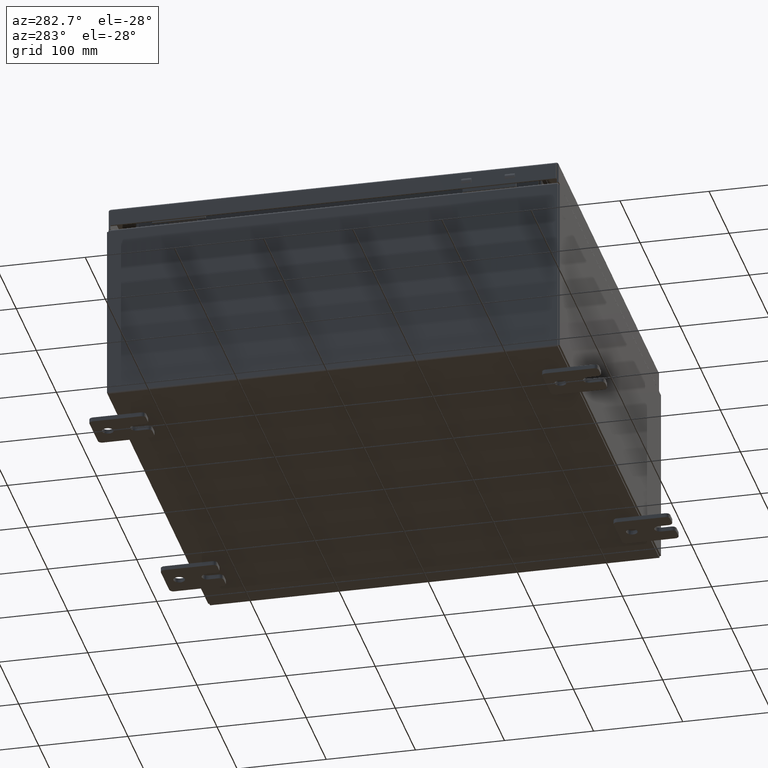
[diagram: clean part render]
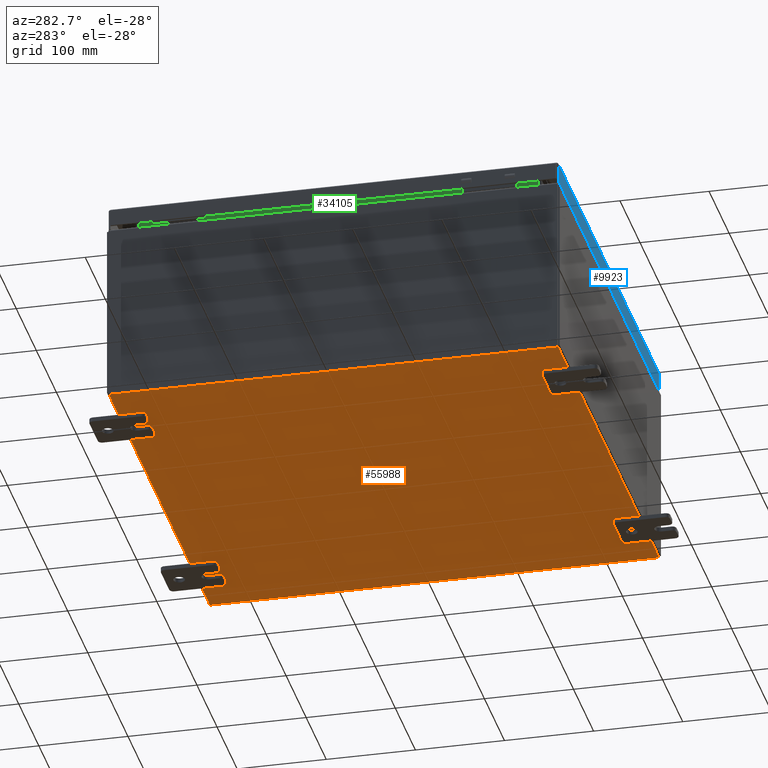
[diagram: same view with three faces highlighted in distinct colors, each labeled with its STEP entity id]
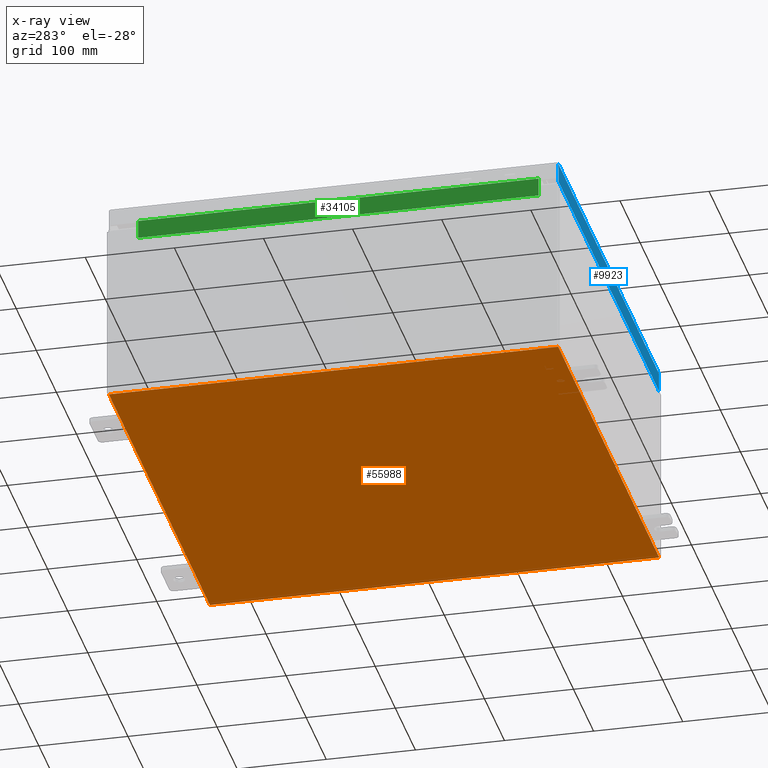
[diagram: x-ray of the same camera — body ghosted, the three highlighted faces saturated]
A machine part, auxiliary view with three faces highlighted in distinct colors.
The next image is the same camera in x-ray (body ghosted, the three faces saturated) — at least one of them is partly hidden behind the body in this view.
Their STEP definitions:

[orange] entity #55988 — the highlighted planar face has unit normal (0, 0, -1).
#1078 = EDGE_CURVE ( 'NONE', #15910, #55173, #44362, .T. ) ;
#5700 = VERTEX_POINT ( 'NONE', #6968 ) ;
#6968 = CARTESIAN_POINT ( 'NONE',  ( -9.912300000000000100, -9.925299999999998200, -0.07469999999999994700 ) ) ;
#7408 = CARTESIAN_POINT ( 'NONE',  ( 0.0000000000000000000, 0.0000000000000000000, -0.07470000000000000300 ) ) ;
#7688 = LINE ( 'NONE', #17289, #32192 ) ;
#8530 = CARTESIAN_POINT ( 'NONE',  ( 9.912300000000000100, 9.925300000000001800, -0.07469999999999994700 ) ) ;
#9858 = CARTESIAN_POINT ( 'NONE',  ( -9.912300000000000100, 9.925300000000001800, -0.07470000000000000300 ) ) ;
#11906 = LINE ( 'NONE', #34895, #36453 ) ;
#12307 = DIRECTION ( 'NONE',  ( -1.000000000000000000, 0.0000000000000000000, -0.0000000000000000000 ) ) ;
#15910 = VERTEX_POINT ( 'NONE', #48306 ) ;
#17289 = CARTESIAN_POINT ( 'NONE',  ( -10.00000000000000000, 9.925300000000001800, -0.07470000000000000300 ) ) ;
#17409 = EDGE_CURVE ( 'NONE', #15910, #56973, #7688, .T. ) ;
#21552 = ORIENTED_EDGE ( 'NONE', *, *, #37049, .T. ) ;
#21922 = PLANE ( 'NONE',  #60492 ) ;
#23501 = ORIENTED_EDGE ( 'NONE', *, *, #61776, .F. ) ;
#27594 = ORIENTED_EDGE ( 'NONE', *, *, #1078, .T. ) ;
#29131 = DIRECTION ( 'NONE',  ( -0.0000000000000000000, 1.000000000000000000, -0.0000000000000000000 ) ) ;
#30456 = ORIENTED_EDGE ( 'NONE', *, *, #17409, .F. ) ;
#31300 = VECTOR ( 'NONE', #62298, 39.37007874015748100 ) ;
#32192 = VECTOR ( 'NONE', #46676, 39.37007874015748100 ) ;
#34895 = CARTESIAN_POINT ( 'NONE',  ( -10.00000000000000000, -9.925299999999998200, -0.07470000000000000300 ) ) ;
#36453 = VECTOR ( 'NONE', #39847, 39.37007874015748100 ) ;
#37049 = EDGE_CURVE ( 'NONE', #5700, #56973, #40711, .T. ) ;
#39847 = DIRECTION ( 'NONE',  ( 1.000000000000000000, 0.0000000000000000000, 0.0000000000000000000 ) ) ;
#39917 = EDGE_LOOP ( 'NONE', ( #23501, #21552, #30456, #27594 ) ) ;
#40711 = LINE ( 'NONE', #63442, #53734 ) ;
#41683 = DIRECTION ( 'NONE',  ( 0.0000000000000000000, 0.0000000000000000000, -1.000000000000000000 ) ) ;
#44362 = LINE ( 'NONE', #8530, #31300 ) ;
#46676 = DIRECTION ( 'NONE',  ( -1.000000000000000000, -0.0000000000000000000, -0.0000000000000000000 ) ) ;
#48306 = CARTESIAN_POINT ( 'NONE',  ( 9.912300000000000100, 9.925299999999998200, -0.07469999999999994700 ) ) ;
#53101 = FACE_OUTER_BOUND ( 'NONE', #39917, .T. ) ;
#53734 = VECTOR ( 'NONE', #29131, 39.37007874015748100 ) ;
#55173 = VERTEX_POINT ( 'NONE', #55236 ) ;
#55236 = CARTESIAN_POINT ( 'NONE',  ( 9.912300000000000100, -9.925299999999998200, -0.07470000000000000300 ) ) ;
#55988 = ADVANCED_FACE ( 'NONE', ( #53101 ), #21922, .T. ) ;
#56973 = VERTEX_POINT ( 'NONE', #9858 ) ;
#60492 = AXIS2_PLACEMENT_3D ( 'NONE', #7408, #41683, #12307 ) ;
#61776 = EDGE_CURVE ( 'NONE', #5700, #55173, #11906, .T. ) ;
#62298 = DIRECTION ( 'NONE',  ( -0.0000000000000000000, -1.000000000000000000, -0.0000000000000000000 ) ) ;
#63442 = CARTESIAN_POINT ( 'NONE',  ( -9.912300000000000100, -9.925299999999998200, -0.07469999999999994700 ) ) ;

[blue] entity #9923 — the highlighted planar face has unit normal (-0, 1, -0).
#272 = VECTOR ( 'NONE', #23761, 39.37007874015748100 ) ;
#2296 = EDGE_LOOP ( 'NONE', ( #60570, #58916, #23646, #45542 ) ) ;
#3416 = FACE_OUTER_BOUND ( 'NONE', #2296, .T. ) ;
#3945 = DIRECTION ( 'NONE',  ( 0.0000000000000000000, 2.532419924601866100E-015, 1.000000000000000000 ) ) ;
#4201 = VECTOR ( 'NONE', #36796, 39.37007874015748100 ) ;
#6000 = EDGE_CURVE ( 'NONE', #45820, #26318, #51182, .T. ) ;
#9923 = ADVANCED_FACE ( 'NONE', ( #3416 ), #57697, .F. ) ;
#12820 = CARTESIAN_POINT ( 'NONE',  ( -9.848657864376265900, -9.937500000000001800, 2.542673665674263500E-014 ) ) ;
#15181 = CARTESIAN_POINT ( 'NONE',  ( 9.848657864376264100, -9.937500000000001800, -0.08770000000000008300 ) ) ;
#15269 = DIRECTION ( 'NONE',  ( -1.000000000000000000, 4.379057701015054300E-047, 1.237063242414006500E-016 ) ) ;
#18201 = AXIS2_PLACEMENT_3D ( 'NONE', #28329, #33275, #3945 ) ;
#21962 = CARTESIAN_POINT ( 'NONE',  ( 9.937499999999998200, -9.937500000000001800, -0.08770000000000008300 ) ) ;
#23646 = ORIENTED_EDGE ( 'NONE', *, *, #6000, .F. ) ;
#23761 = DIRECTION ( 'NONE',  ( -0.0000000000000000000, -2.532419924601866100E-015, -1.000000000000000000 ) ) ;
#25502 = EDGE_CURVE ( 'NONE', #32981, #45820, #52445, .T. ) ;
#25942 = CARTESIAN_POINT ( 'NONE',  ( -9.848657864376264100, -9.937500000000001800, -0.08770000000000008300 ) ) ;
#26318 = VERTEX_POINT ( 'NONE', #41991 ) ;
#28329 = CARTESIAN_POINT ( 'NONE',  ( 3.113183830562557100E-030, -9.937500000000001800, 2.542673665674263500E-014 ) ) ;
#28871 = EDGE_CURVE ( 'NONE', #48932, #26318, #36225, .T. ) ;
#32981 = VERTEX_POINT ( 'NONE', #15181 ) ;
#33275 = DIRECTION ( 'NONE',  ( -3.132763603081817700E-031, 1.000000000000000000, -2.532419924601866100E-015 ) ) ;
#36225 = LINE ( 'NONE', #12820, #37776 ) ;
#36796 = DIRECTION ( 'NONE',  ( 1.000000000000000000, 3.132763603081818100E-031, -7.843572268217993600E-046 ) ) ;
#37776 = VECTOR ( 'NONE', #51435, 39.37007874015748100 ) ;
#39717 = CARTESIAN_POINT ( 'NONE',  ( 9.937499999999998200, -9.937500000000003600, -0.9376999999999997600 ) ) ;
#41991 = CARTESIAN_POINT ( 'NONE',  ( -9.848657864376264100, -9.937500000000003600, -0.9376999999999973100 ) ) ;
#45542 = ORIENTED_EDGE ( 'NONE', *, *, #25502, .F. ) ;
#45820 = VERTEX_POINT ( 'NONE', #63051 ) ;
#46433 = EDGE_CURVE ( 'NONE', #48932, #32981, #56315, .T. ) ;
#48932 = VERTEX_POINT ( 'NONE', #25942 ) ;
#49647 = VECTOR ( 'NONE', #15269, 39.37007874015748100 ) ;
#51182 = LINE ( 'NONE', #39717, #49647 ) ;
#51435 = DIRECTION ( 'NONE',  ( 0.0000000000000000000, -2.532419924601866100E-015, -1.000000000000000000 ) ) ;
#52445 = LINE ( 'NONE', #58066, #272 ) ;
#56315 = LINE ( 'NONE', #21962, #4201 ) ;
#57697 = PLANE ( 'NONE',  #18201 ) ;
#58066 = CARTESIAN_POINT ( 'NONE',  ( 9.848657864376265900, -9.937500000000001800, -0.07469999999999980800 ) ) ;
#58916 = ORIENTED_EDGE ( 'NONE', *, *, #28871, .T. ) ;
#60570 = ORIENTED_EDGE ( 'NONE', *, *, #46433, .F. ) ;
#63051 = CARTESIAN_POINT ( 'NONE',  ( 9.848657864376265900, -9.937500000000003600, -0.9376999999999997600 ) ) ;

[green] entity #34105 — the highlighted planar face has unit normal (-1, 0, -0).
#866 = ORIENTED_EDGE ( 'NONE', *, *, #17988, .F. ) ;
#1095 = ORIENTED_EDGE ( 'NONE', *, *, #3565, .F. ) ;
#1248 = DIRECTION ( 'NONE',  ( 3.542869979895294000E-015, -0.0000000000000000000, -1.000000000000000000 ) ) ;
#2582 = DIRECTION ( 'NONE',  ( -1.000000000000000000, 2.188795985049401400E-031, -3.542869979895298400E-015 ) ) ;
#3382 = VERTEX_POINT ( 'NONE', #25556 ) ;
#3565 = EDGE_CURVE ( 'NONE', #11127, #9168, #33481, .T. ) ;
#3923 = VERTEX_POINT ( 'NONE', #4822 ) ;
#4822 = CARTESIAN_POINT ( 'NONE',  ( -8.949700000000030200, -8.843749999999996400, 8.762900000000005500 ) ) ;
#5343 = LINE ( 'NONE', #6197, #44436 ) ;
#6197 = CARTESIAN_POINT ( 'NONE',  ( -8.949700000000028400, -8.843749999999996400, 7.925300000000006200 ) ) ;
#9168 = VERTEX_POINT ( 'NONE', #24207 ) ;
#11127 = VERTEX_POINT ( 'NONE', #18670 ) ;
#12440 = LINE ( 'NONE', #12707, #38527 ) ;
#12707 = CARTESIAN_POINT ( 'NONE',  ( -8.949700000000030200, 8.843750000000000000, 8.762900000000005500 ) ) ;
#14040 = EDGE_LOOP ( 'NONE', ( #866, #18845, #19035, #1095 ) ) ;
#17335 = DIRECTION ( 'NONE',  ( -6.178030798392683000E-017, 1.000000000000000000, 1.235606159678536600E-016 ) ) ;
#17988 = EDGE_CURVE ( 'NONE', #3923, #11127, #5343, .T. ) ;
#18670 = CARTESIAN_POINT ( 'NONE',  ( -8.949700000000028400, -8.843749999999996400, 7.938300000000007900 ) ) ;
#18845 = ORIENTED_EDGE ( 'NONE', *, *, #56073, .F. ) ;
#19035 = ORIENTED_EDGE ( 'NONE', *, *, #60539, .F. ) ;
#20674 = LINE ( 'NONE', #23405, #45232 ) ;
#23405 = CARTESIAN_POINT ( 'NONE',  ( -8.949700000000032000, 8.843749999999998200, 8.850600000000007100 ) ) ;
#24207 = CARTESIAN_POINT ( 'NONE',  ( -8.949700000000028400, 8.843749999999996400, 7.938300000000007900 ) ) ;
#25556 = CARTESIAN_POINT ( 'NONE',  ( -8.949700000000032000, 8.843749999999998200, 8.762900000000005500 ) ) ;
#28506 = AXIS2_PLACEMENT_3D ( 'NONE', #61289, #2582, #36868 ) ;
#33481 = LINE ( 'NONE', #61507, #58005 ) ;
#34105 = ADVANCED_FACE ( 'NONE', ( #53911 ), #41595, .T. ) ;
#36868 = DIRECTION ( 'NONE',  ( -3.542869979895298400E-015, 0.0000000000000000000, 1.000000000000000000 ) ) ;
#38527 = VECTOR ( 'NONE', #42091, 39.37007874015748100 ) ;
#41595 = PLANE ( 'NONE',  #28506 ) ;
#42091 = DIRECTION ( 'NONE',  ( -0.0000000000000000000, -1.000000000000000000, -0.0000000000000000000 ) ) ;
#44436 = VECTOR ( 'NONE', #1248, 39.37007874015748100 ) ;
#45232 = VECTOR ( 'NONE', #57719, 39.37007874015748100 ) ;
#53911 = FACE_OUTER_BOUND ( 'NONE', #14040, .T. ) ;
#56073 = EDGE_CURVE ( 'NONE', #3382, #3923, #12440, .T. ) ;
#57719 = DIRECTION ( 'NONE',  ( -3.542869979895298400E-015, -0.0000000000000000000, 1.000000000000000000 ) ) ;
#58005 = VECTOR ( 'NONE', #17335, 39.37007874015748100 ) ;
#60539 = EDGE_CURVE ( 'NONE', #9168, #3382, #20674, .T. ) ;
#61289 = CARTESIAN_POINT ( 'NONE',  ( -8.949700000000000000, 1.958906742739663100E-030, -3.170762345906895500E-014 ) ) ;
#61507 = CARTESIAN_POINT ( 'NONE',  ( -8.949700000000030200, -8.843749999999996400, 7.938300000000006100 ) ) ;